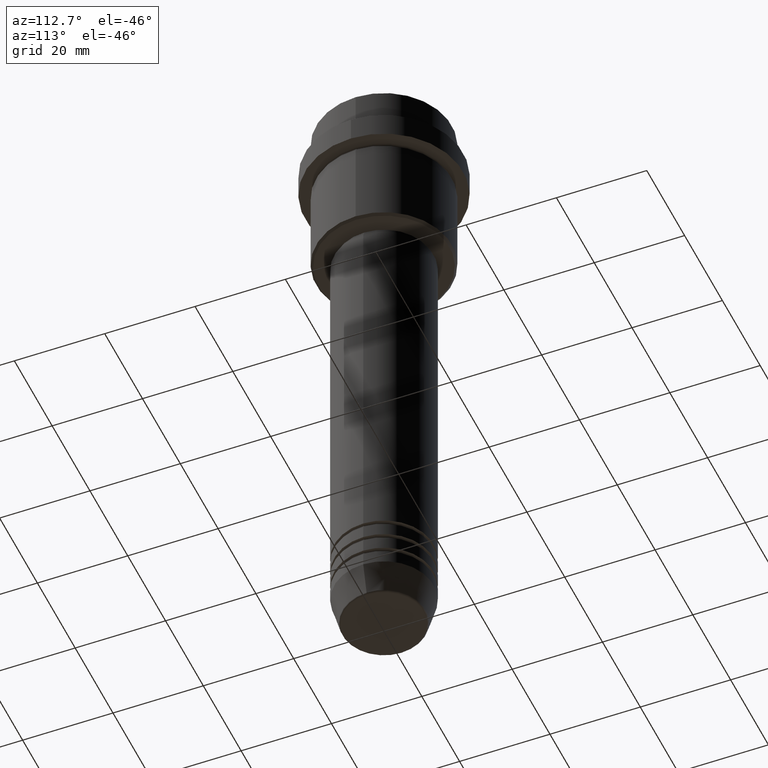
[diagram: clean part render]
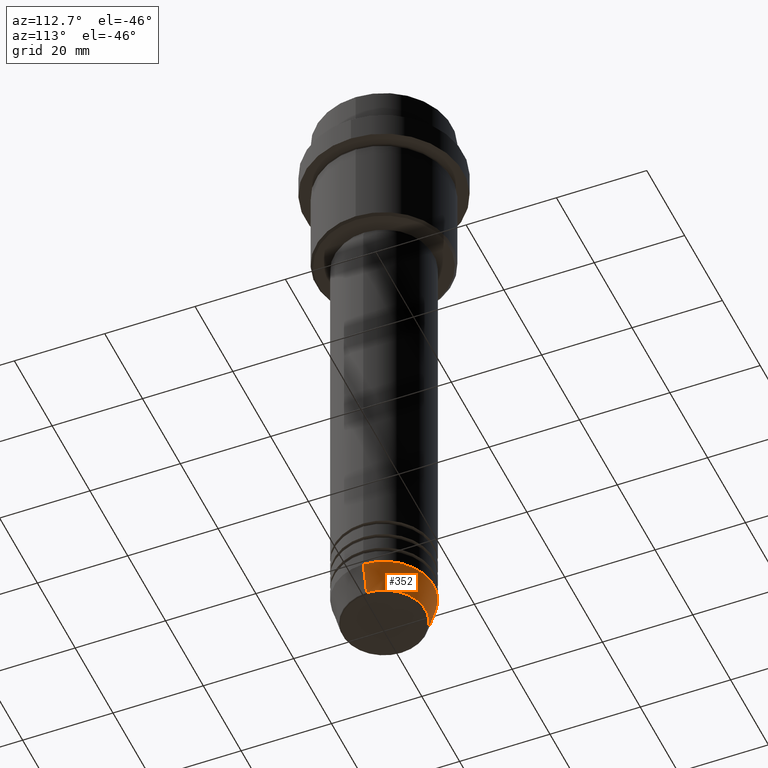
[diagram: same view with one face highlighted and labeled with its STEP entity id]
A machine part, auxiliary view. The second image highlights one B-rep face of the part: STEP entity #352.
In plain terms, the highlighted conical surface has half-angle 15 deg.
Its self-contained STEP definition (entity closure, byte-faithful):
#30 = ORIENTED_EDGE ( 'NONE', *, *, #188, .F. ) ;
#49 = DIRECTION ( 'NONE',  ( 0.2588190451025213501, 0.000000000000000000, 0.9659258262890680902 ) ) ;
#184 = CARTESIAN_POINT ( 'NONE',  ( 0.000000000000000000, 0.000000000000000000, -140.6294095225512422 ) ) ;
#185 = CARTESIAN_POINT ( 'NONE',  ( 9.223655072137189492, 0.000000000000000000, -140.6294095225512422 ) ) ;
#188 = EDGE_CURVE ( 'NONE', #732, #1285, #469, .T. ) ;
#192 = DIRECTION ( 'NONE',  ( 1.000000000000000000, 0.000000000000000000, 0.000000000000000000 ) ) ;
#252 = VECTOR ( 'NONE', #49, 1000.000000000000000 ) ;
#272 = AXIS2_PLACEMENT_3D ( 'NONE', #904, #1347, #808 ) ;
#301 = ORIENTED_EDGE ( 'NONE', *, *, #1156, .T. ) ;
#342 = AXIS2_PLACEMENT_3D ( 'NONE', #184, #1050, #924 ) ;
#352 = ADVANCED_FACE ( 'NONE', ( #409 ), #774, .T. ) ;
#385 = CIRCLE ( 'NONE', #272, 11.00000000000000000 ) ;
#409 = FACE_OUTER_BOUND ( 'NONE', #1152, .T. ) ;
#469 = LINE ( 'NONE', #1342, #252 ) ;
#487 = ORIENTED_EDGE ( 'NONE', *, *, #980, .F. ) ;
#504 = CARTESIAN_POINT ( 'NONE',  ( 0.000000000000000000, 0.000000000000000000, -133.9999999999999716 ) ) ;
#604 = CARTESIAN_POINT ( 'NONE',  ( -9.223655072137189492, 1.238341722557647202E-15, -140.6294095225512422 ) ) ;
#679 = VERTEX_POINT ( 'NONE', #604 ) ;
#732 = VERTEX_POINT ( 'NONE', #185 ) ;
#757 = EDGE_CURVE ( 'NONE', #679, #1374, #1367, .T. ) ;
#774 = CONICAL_SURFACE ( 'NONE', #961, 11.00000000000000000, 0.2617993877991500740 ) ;
#808 = DIRECTION ( 'NONE',  ( 1.000000000000000000, 0.000000000000000000, 0.000000000000000000 ) ) ;
#830 = DIRECTION ( 'NONE',  ( -0.2588190451025213501, 3.169619151431772337E-17, 0.9659258262890680902 ) ) ;
#904 = CARTESIAN_POINT ( 'NONE',  ( 0.000000000000000000, 0.000000000000000000, -133.9999999999999716 ) ) ;
#924 = DIRECTION ( 'NONE',  ( 1.000000000000000000, 0.000000000000000000, 0.000000000000000000 ) ) ;
#948 = DIRECTION ( 'NONE',  ( -0.000000000000000000, -0.000000000000000000, 1.000000000000000000 ) ) ;
#961 = AXIS2_PLACEMENT_3D ( 'NONE', #504, #948, #192 ) ;
#974 = CARTESIAN_POINT ( 'NONE',  ( 11.00000000000000000, 0.000000000000000000, -133.9999999999999716 ) ) ;
#980 = EDGE_CURVE ( 'NONE', #1285, #1374, #385, .T. ) ;
#1050 = DIRECTION ( 'NONE',  ( -0.000000000000000000, -0.000000000000000000, 1.000000000000000000 ) ) ;
#1066 = CARTESIAN_POINT ( 'NONE',  ( -11.00000000000000000, 1.347111479062088405E-15, -133.9999999999999716 ) ) ;
#1082 = ORIENTED_EDGE ( 'NONE', *, *, #757, .T. ) ;
#1152 = EDGE_LOOP ( 'NONE', ( #301, #1082, #487, #30 ) ) ;
#1156 = EDGE_CURVE ( 'NONE', #732, #679, #1322, .T. ) ;
#1170 = CARTESIAN_POINT ( 'NONE',  ( -11.00000000000000000, 1.347111479062088405E-15, -133.9999999999999716 ) ) ;
#1285 = VERTEX_POINT ( 'NONE', #974 ) ;
#1322 = CIRCLE ( 'NONE', #342, 9.223655072137189492 ) ;
#1342 = CARTESIAN_POINT ( 'NONE',  ( 11.00000000000000000, 0.000000000000000000, -133.9999999999999716 ) ) ;
#1347 = DIRECTION ( 'NONE',  ( -0.000000000000000000, -0.000000000000000000, 1.000000000000000000 ) ) ;
#1367 = LINE ( 'NONE', #1170, #1416 ) ;
#1374 = VERTEX_POINT ( 'NONE', #1066 ) ;
#1416 = VECTOR ( 'NONE', #830, 1000.000000000000000 ) ;